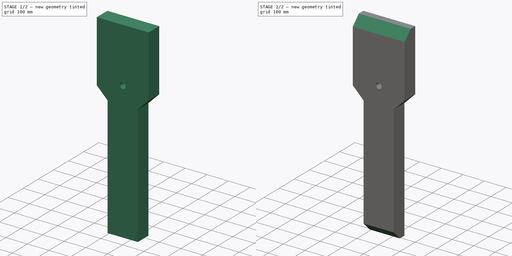
[diagram: build sequence overview — one tinted view per stage of 2, left to right]
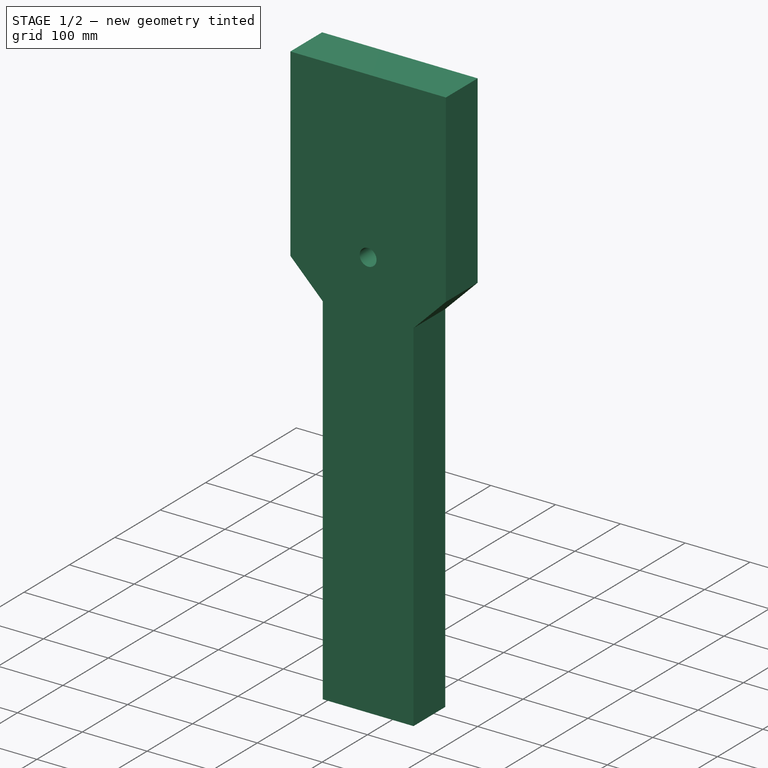
[diagram: stage 1 of 2 — iso view after this stage's code; geometry added in this stage tinted green]
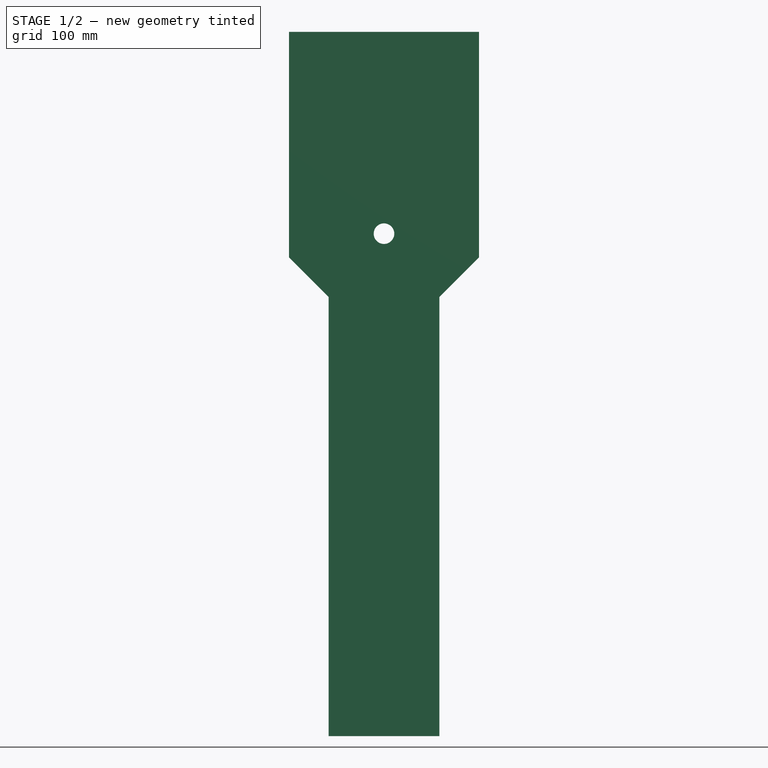
[diagram: stage 1 of 2 — front view after this stage's code; geometry added in this stage tinted green]
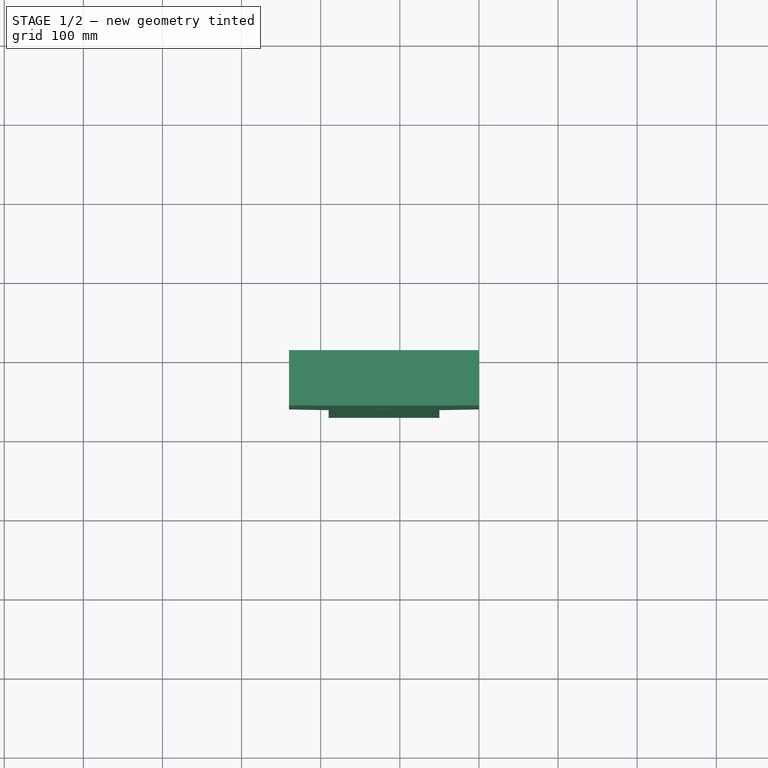
[diagram: stage 1 of 2 — top view after this stage's code; geometry added in this stage tinted green]
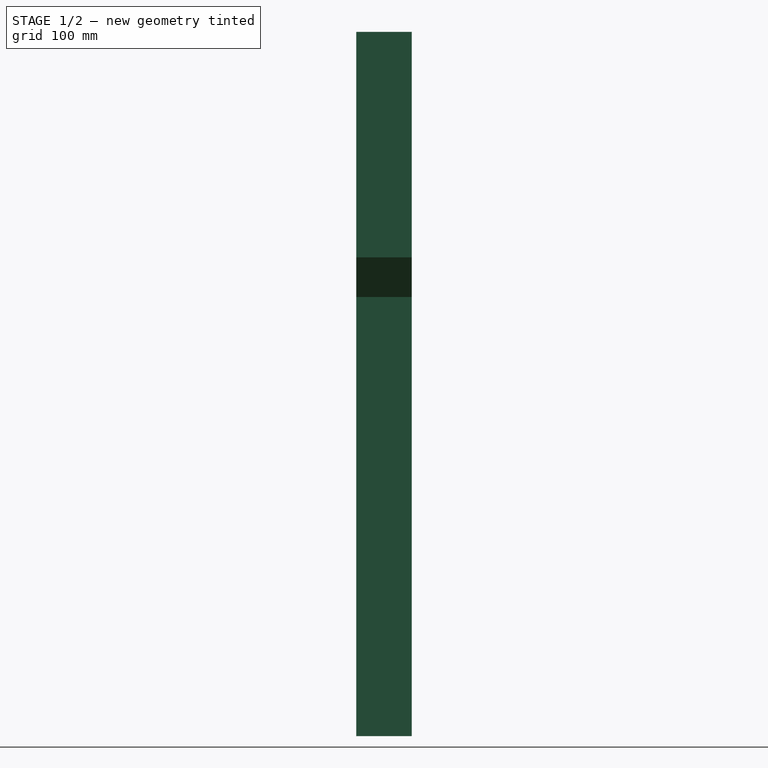
[diagram: stage 1 of 2 — right view after this stage's code; geometry added in this stage tinted green]
FCSTD DOCUMENT  (FreeCAD 0.18R4 (GitTag))
Label: leg_vise
License: All rights reserved
LicenseURL: http://en.wikipedia.org/wiki/All_rights_reserved
objects: Sketcher::SketchObject×1, PartDesign::Pad×1, PartDesign::Chamfer×1, PartDesign::Body×1
note: 5 computed .brp shape members not serialized (recipe doc carries the construction recipe); baked Part::Feature solids carry a one-line shape summary decoded from their .brp

FEATURE [Sketcher::SketchObject] Sketch
  MapMode = 5
  Placement = pos=(0,0,0) rot=(1,0,0;1.5708rad)
  Support = -> [XZ_Plane]
  sketch-geometry (9):
    g0: LineSegment StartX=-50 StartY=0 StartZ=0 EndX=-190 EndY=0 EndZ=0
    g1: LineSegment StartX=-50 StartY=0 StartZ=0 EndX=-50 EndY=555 EndZ=0
    g2: LineSegment StartX=-190 StartY=0 StartZ=0 EndX=-190 EndY=555 EndZ=0
    g3: LineSegment StartX=-240 StartY=605 StartZ=0 EndX=-240 EndY=890 EndZ=0
    g4: LineSegment StartX=-240 StartY=890 StartZ=0 EndX=0 EndY=890 EndZ=0
    g5: LineSegment StartX=0 StartY=890 StartZ=0 EndX=0 EndY=605 EndZ=0
    g6: Circle CenterX=-120 CenterY=635 CenterZ=0 NormalX=0 NormalY=0 NormalZ=1 AngleXU=0 Radius=13
    g7: LineSegment StartX=-50 StartY=555 StartZ=0 EndX=0 EndY=605 EndZ=0
    g8: LineSegment StartX=-240 StartY=605 StartZ=0 EndX=-190 EndY=555 EndZ=0
  constraints (27):
    c: Coincident(g0,g2)
    c: Coincident(g0,g1)
    c: Coincident(g5,g4)
    c: Coincident(g3,g4)
    c: Vertical(g1)
    c: Vertical(g2)
    c: Vertical(g5)
    c: Vertical(g3)
    c: Horizontal(g4)
    c: Horizontal(g0)
    c: PointOnObject(g0,g-1)
    c: DistanceX(g0,g0) = 140
    c: DistanceX(g4,g4) = 240
    c: DistanceX(g0,g-1) = 50
    c: DistanceX(g6,g4) = 120
    c: Diameter(g6) = 26
    c: DistanceY(g6,g4) = 255
    c: DistanceY(g1,g1) = 555
    c: DistanceY(g1,g4) = 335
    c: Coincident(g7,g5)
    c: Coincident(g7,g1)
    c: PointOnObject(g5,g-2)
    c: DistanceY(g1,g5) = 50
    c: Coincident(g8,g2)
    c: Coincident(g8,g3)
    c: DistanceY(g2,g3) = 50
    c: DistanceY(g2,g1) = 0
FEATURE [PartDesign::Pad] Pad
  Length = 70
  Length2 = 100
  Placement = pos=(0,0,0) rot=(1,0,0;1.5708rad)
  Profile = -> Sketch
  Type = 0
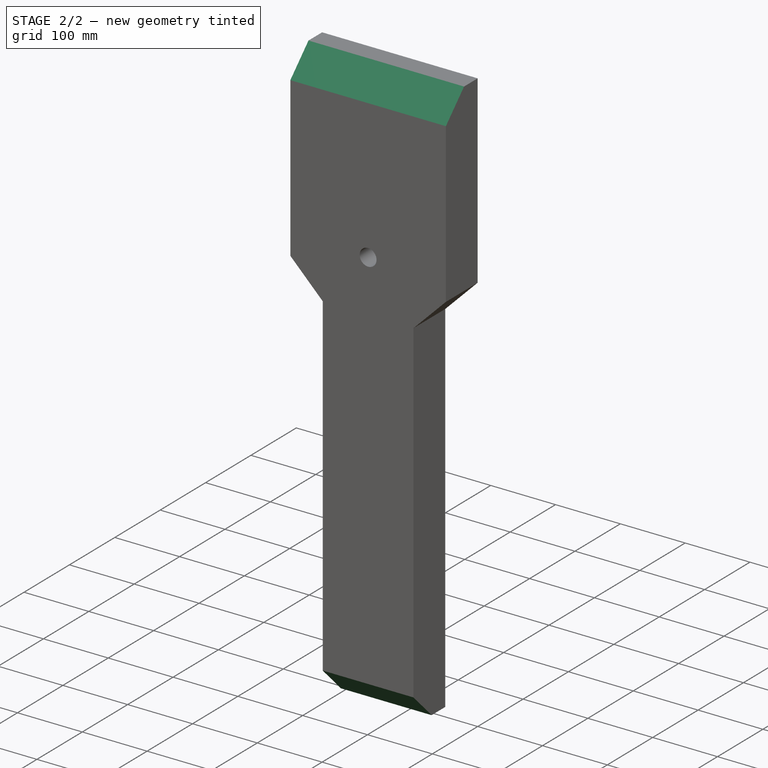
[diagram: stage 2 of 2 — iso view after this stage's code; geometry added in this stage tinted green]
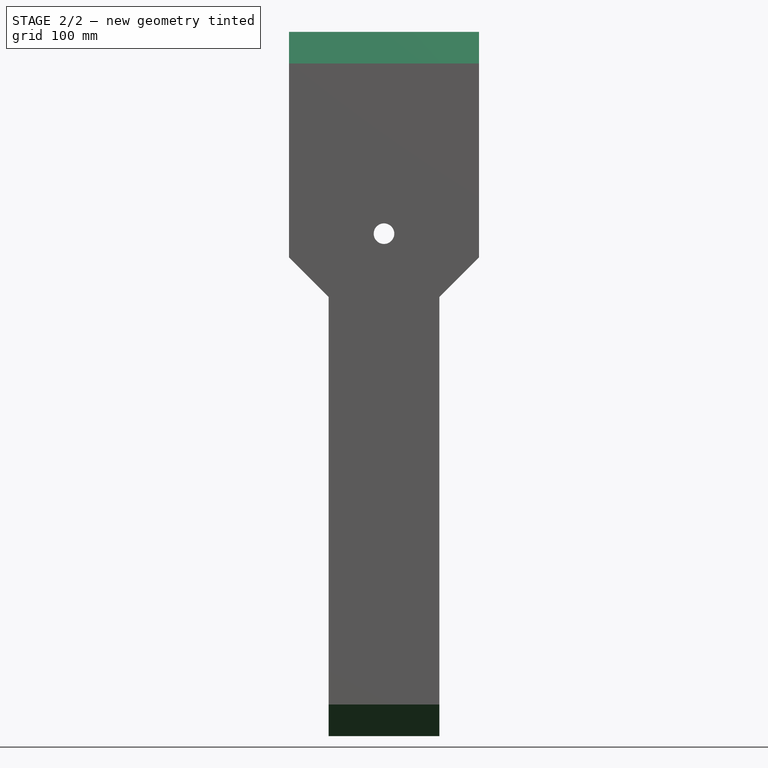
[diagram: stage 2 of 2 — front view after this stage's code; geometry added in this stage tinted green]
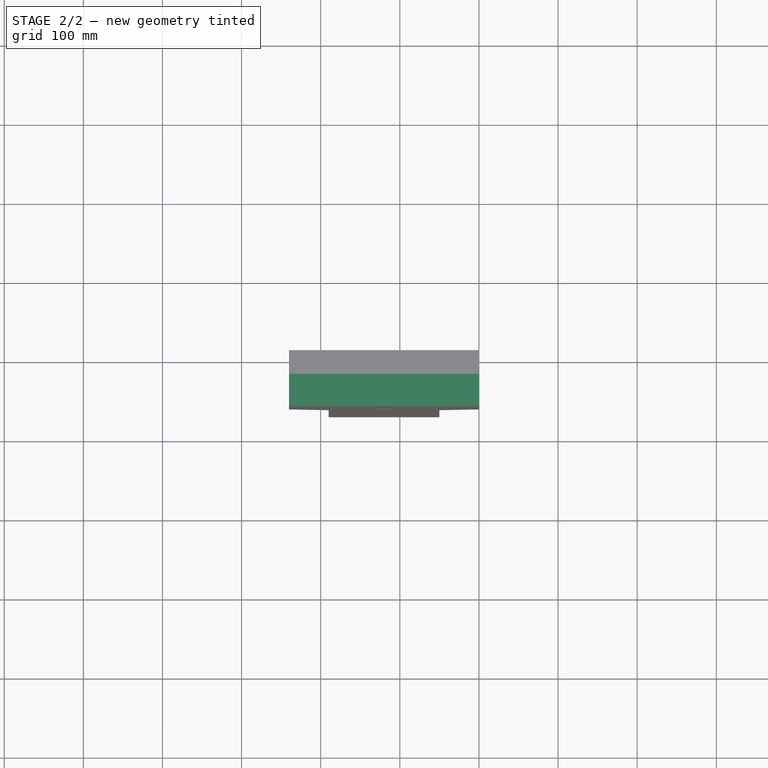
[diagram: stage 2 of 2 — top view after this stage's code; geometry added in this stage tinted green]
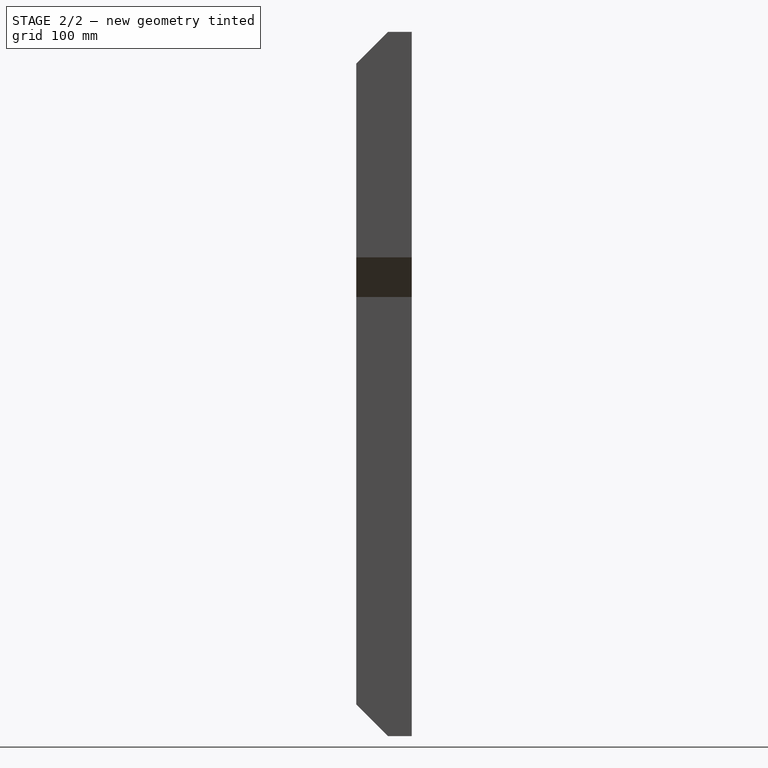
[diagram: stage 2 of 2 — right view after this stage's code; geometry added in this stage tinted green]
FEATURE [PartDesign::Chamfer] Chamfer
  Base = -> Pad [Edge7,Edge19]
  BaseFeature = -> Pad
  Placement = pos=(0,0,0) rot=(1,0,0;1.5708rad)
  Size = 40
FEATURE [PartDesign::Body] Body
  Group = -> [Sketch,Pad,Chamfer]
  Origin = -> Origin
  Tip = -> Chamfer
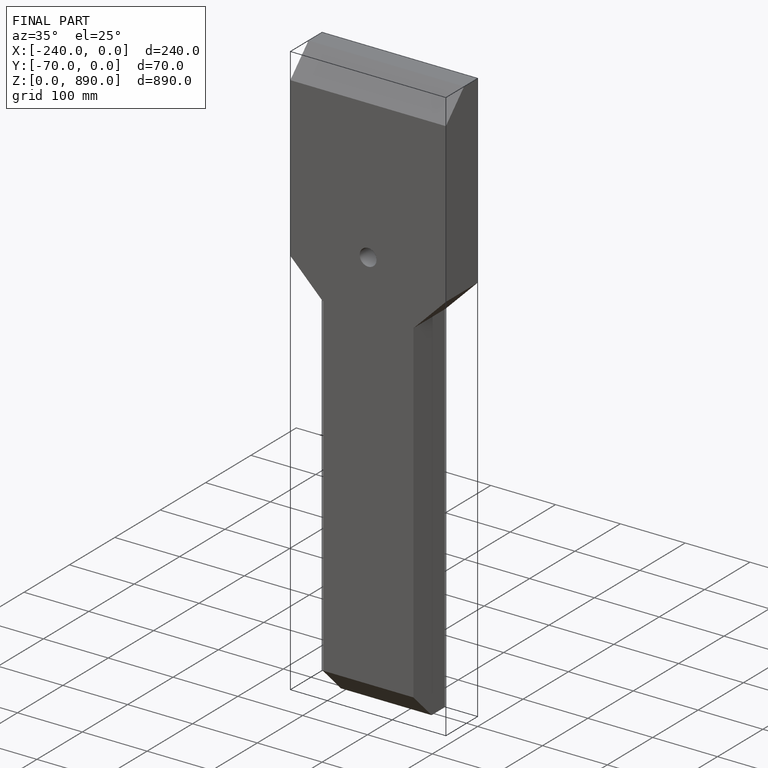
[diagram: finished part — iso view with bounding-box wireframe]
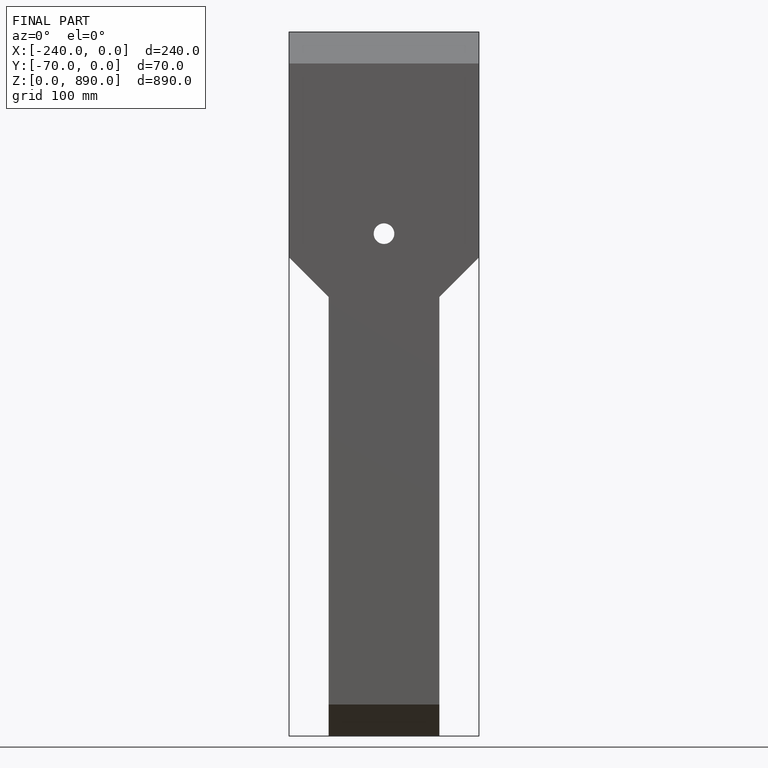
[diagram: finished part — front view with bounding-box wireframe]
